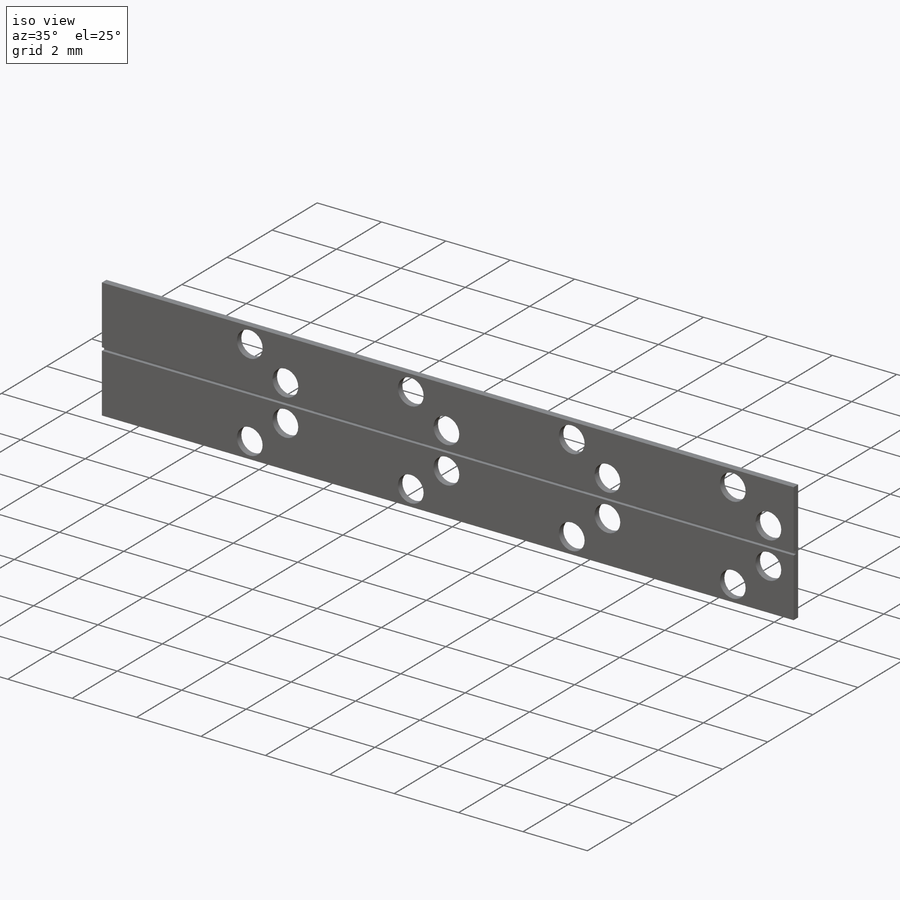
[diagram: iso view]
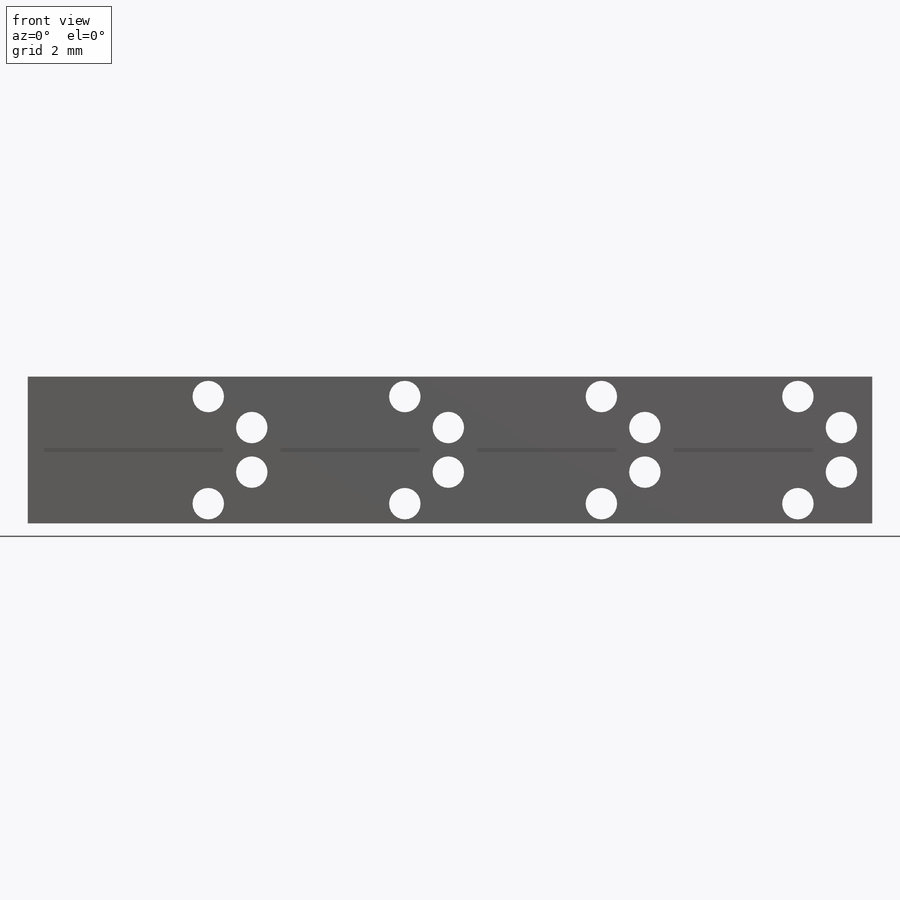
[diagram: front view]
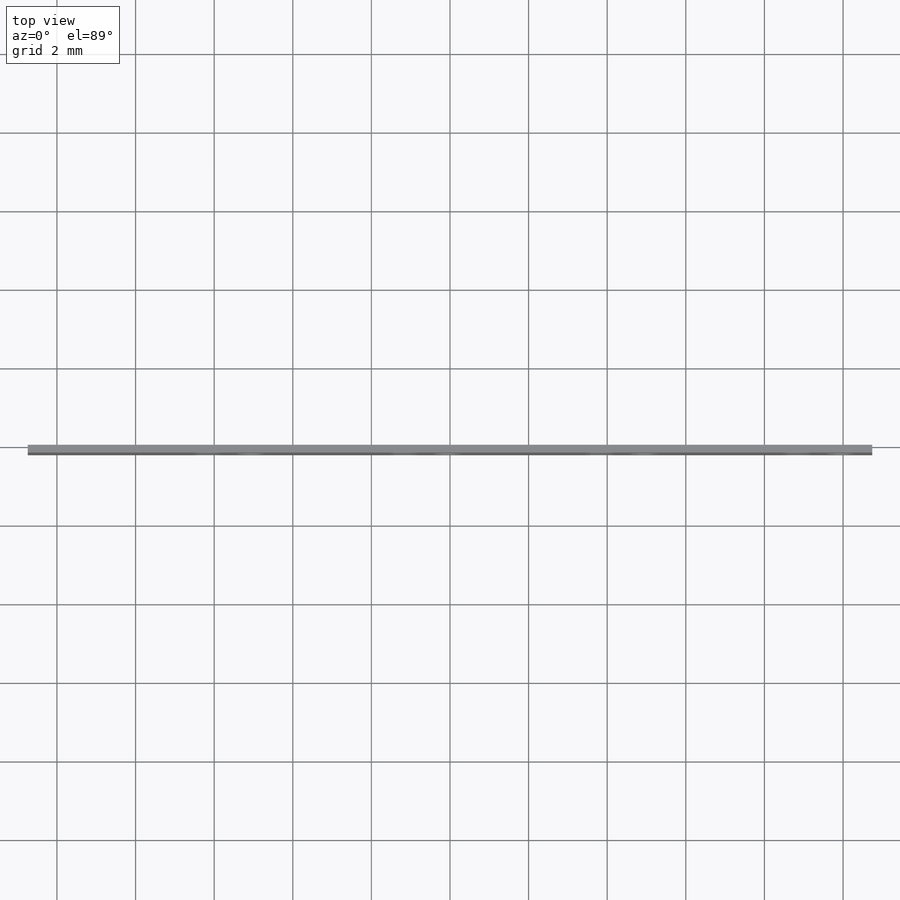
[diagram: top view]
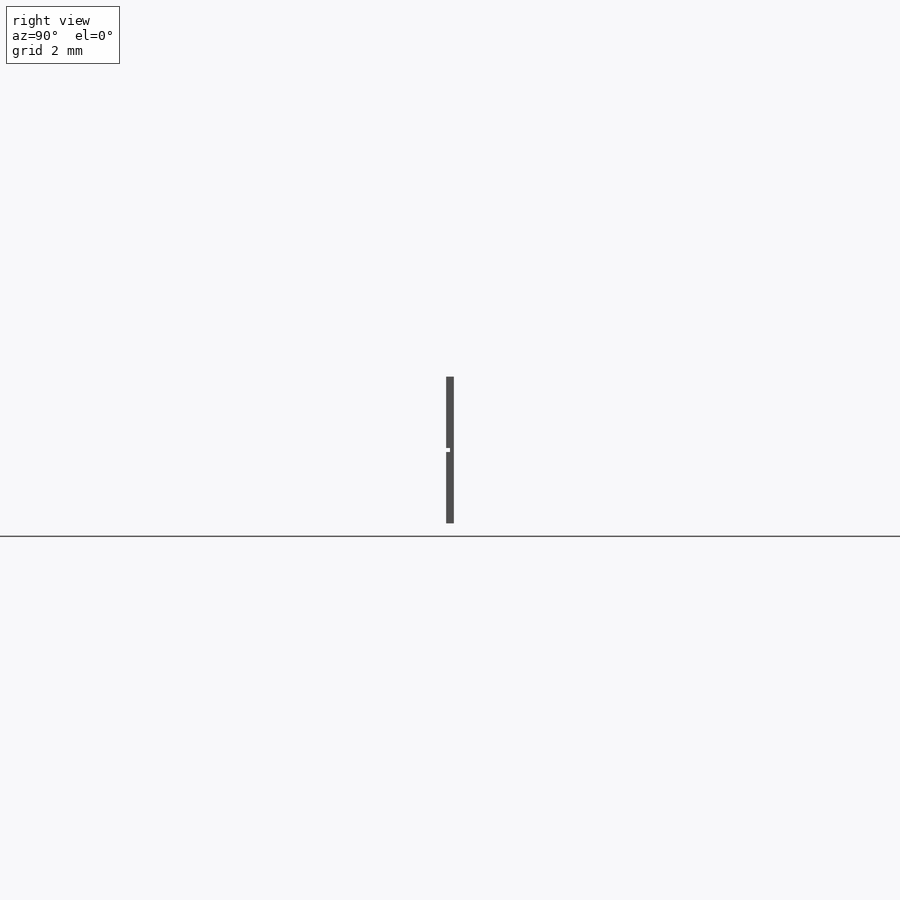
[diagram: right view]
SOLIDWORKS PART (.sldprt)
format: sldprt  version: not decoded by parser v0  size: 169,472 bytes
history: native  units: mm
features: plane x3, sketch x3, cut_extrude x2, material x1, extrude x1, pattern_linear x1 (+8 scaffold rows collapsed)
feature tree (19):
  scaffold x8  (default folders/planes/origin — collapsed)
  material  "Material <nicht festgelegt>"
  plane  "Ebene vorne"
  plane  "Ebene oben"
  plane  "Ebene rechts"
  sketch  "Skizze1"
  extrude  "Aufsatz-Linear austragen1"  Depth=0.2mm
  sketch  "Skizze2"  dims[D1=0.1mm]
  cut_extrude  "Schnitt-Linear austragen1"  Depth=0.1mm
  sketch  "Skizze3"  dims[D1=~0.384314mm]
  cut_extrude  "Schnitt-Linear austragen2"  [1 undecoded]
  pattern_linear  "Lineares Muster1"  Count1=4 Count2=1 Spacing1=5mm Spacing2=10mm
decode coverage: 5 of 7 modeling features carry decoded parameters
note: ~ marks probable driven/reference dimensions
note: 1 parameter value undecoded
note: suppression state not decoded; provenance and decode notes live in map.json
